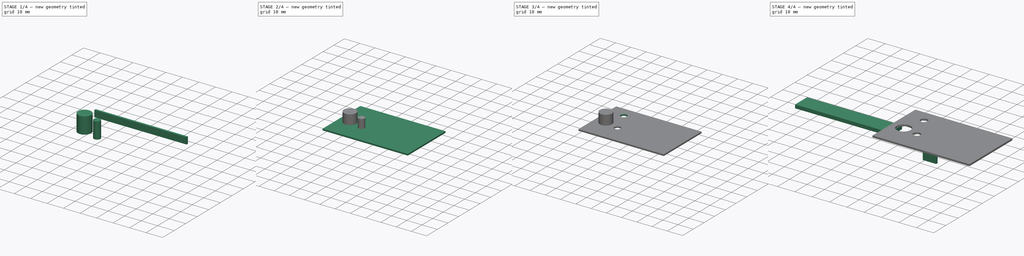
[diagram: build sequence overview — one tinted view per stage of 4, left to right]
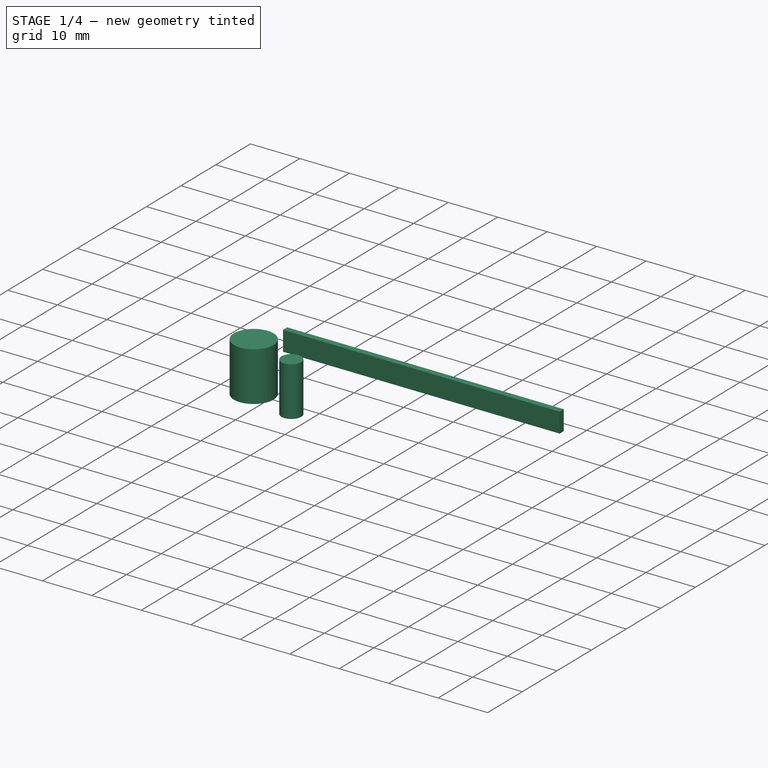
[diagram: stage 1 of 4 — iso view after this stage's code; geometry added in this stage tinted green]
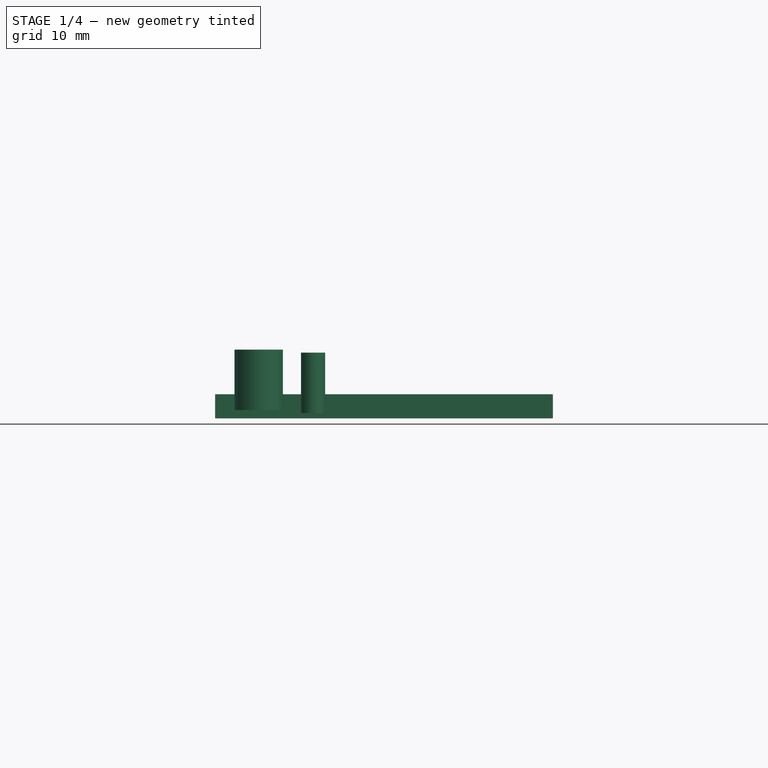
[diagram: stage 1 of 4 — front view after this stage's code; geometry added in this stage tinted green]
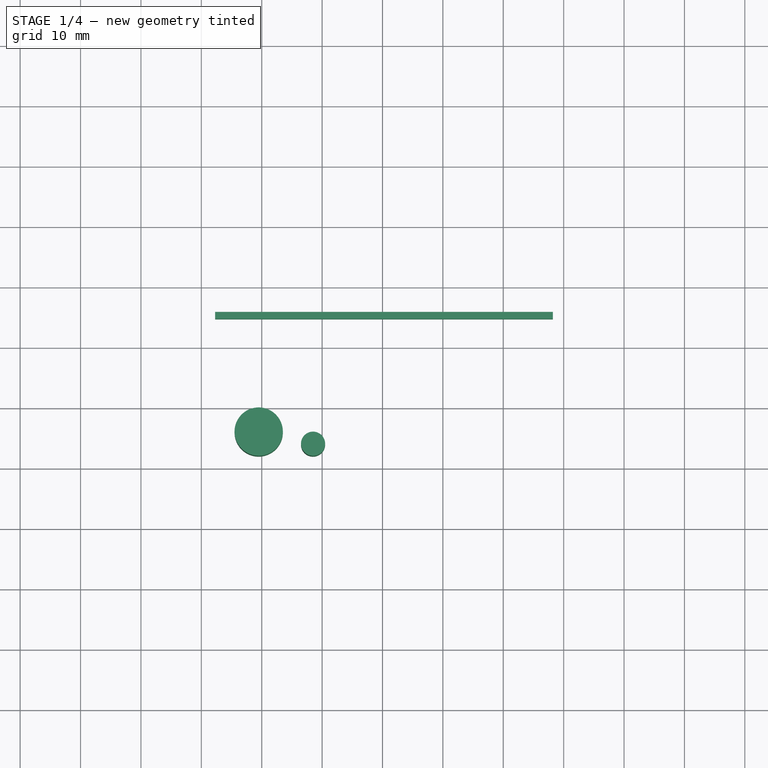
[diagram: stage 1 of 4 — top view after this stage's code; geometry added in this stage tinted green]
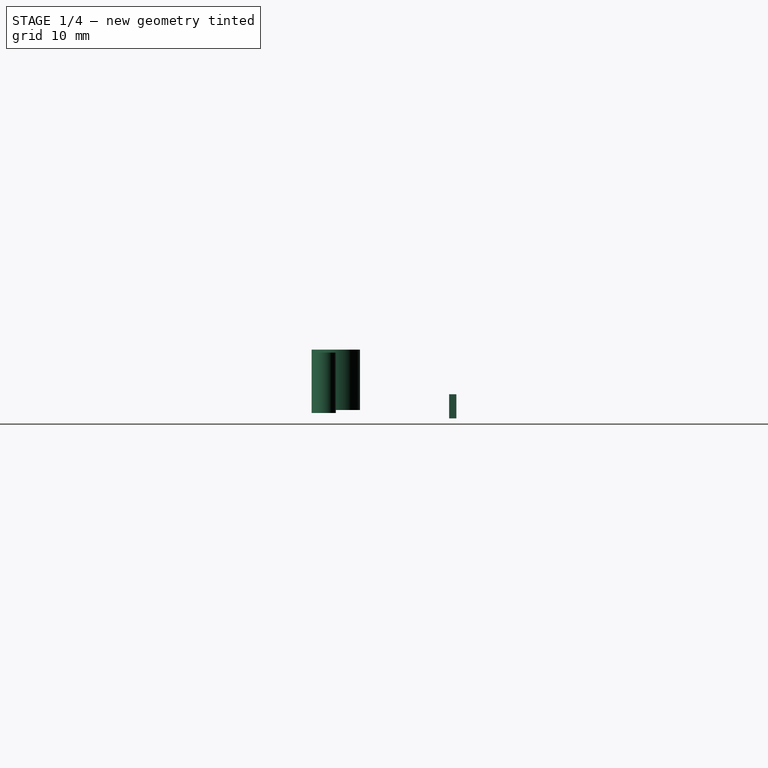
[diagram: stage 1 of 4 — right view after this stage's code; geometry added in this stage tinted green]
FCSTD DOCUMENT  (FreeCAD 0.21R33771 (Git))
Label: Arsenic-Case-Top
License: All rights reserved
LicenseURL: https://en.wikipedia.org/wiki/All_rights_reserved
objects: Part::Feature×57, Sketcher::SketchObject×7, Part::Extrusion×7, Part::Cylinder×3, Part::Cut×3, PartDesign::Body×1, Part::RuledSurface×1
note: 79 computed .brp shape members not serialized (recipe doc carries the construction recipe); baked Part::Feature solids carry a one-line shape summary decoded from their .brp

FEATURE [Part::Feature] Extrude031_cs
  shape: bbox 54.71 x 3e-07 x 2 mm, 0 faces, 0 solids (baked)
FEATURE [Part::Feature] Extrude031_cs001
  shape: bbox 54.71 x 3e-07 x 2 mm, 0 faces, 0 solids (baked)
FEATURE [Part::Feature] Extrude031_cs002
  shape: bbox 54.71 x 3e-07 x 2 mm, 0 faces, 0 solids (baked)
FEATURE [Part::RuledSurface] Ruled_Surface034
  Curve1 = -> Extrude025 [Edge9]
  Curve2 = -> Extrude025 [Edge3]
  Orientation = 0
FEATURE [Part::Feature] Wire
  shape: bbox 2e-07 x 2e-07 x 2 mm, 0 faces, 0 solids (baked)
FEATURE [Part::Feature] Wire001
  shape: bbox 13.62 x 0.0012 x 2e-07 mm, 0 faces, 0 solids (baked)
FEATURE [Part::Feature] Wire002
  shape: bbox 13.62 x 0.0012 x 2e-07 mm, 0 faces, 0 solids (baked)
FEATURE [Part::Feature] Edge
  shape: bbox 2e-07 x 1.2 x 2e-07 mm, 0 faces, 0 solids (baked)
FEATURE [Part::Feature] Edge001
  shape: bbox 2e-07 x 1.2 x 2e-07 mm, 0 faces, 0 solids (baked)
FEATURE [Part::Feature] Face016
  shape: bbox 7.7 x 2e-07 x 2.2 mm, 1 faces, 0 solids (baked)
FEATURE [Part::Feature] Wire003
  shape: bbox 3.596e-05 x 0.0012 x 2 mm, 0 faces, 0 solids (baked)
FEATURE [Part::Feature] Face017
  shape: bbox 2e-07 x 15.39 x 2.2 mm, 1 faces, 0 solids (baked)
FEATURE [Part::Feature] Edge002
  shape: bbox 13.62 x 0.0008002 x 2e-07 mm, 0 faces, 0 solids (baked)
FEATURE [Part::Feature] Face019
  shape: bbox 14.98 x 0.0008802 x 2.2 mm, 1 faces, 0 solids (baked)
FEATURE [Part::Feature] Edge003
  shape: bbox 2e-07 x 2e-07 x 2 mm, 0 faces, 0 solids (baked)
FEATURE [Part::Feature] Edge004
  shape: bbox 2e-07 x 2e-07 x 2 mm, 0 faces, 0 solids (baked)
FEATURE [Part::Feature] Edge005
  shape: bbox 13.62 x 0.0032 x 2e-07 mm, 0 faces, 0 solids (baked)
FEATURE [Part::Feature] Edge006
  shape: bbox 2e-07 x 1.198 x 2e-07 mm, 0 faces, 0 solids (baked)
FEATURE [Part::Feature] Edge007
  shape: bbox 2e-07 x 2e-07 x 2 mm, 0 faces, 0 solids (baked)
FEATURE [Part::Feature] Face021
  shape: bbox 14.98 x 0.00132 x 2.2 mm, 1 faces, 0 solids (baked)
FEATURE [Part::Feature] Face022
  shape: bbox 14.98 x 0.00352 x 2.2 mm, 1 faces, 0 solids (baked)
FEATURE [Part::Feature] Edge008
  shape: bbox 2e-07 x 1.2 x 2e-07 mm, 0 faces, 0 solids (baked)
FEATURE [Part::Feature] Edge009
  shape: bbox 2e-07 x 1.198 x 2e-07 mm, 0 faces, 0 solids (baked)
FEATURE [Part::Feature] Face023
  shape: bbox 14.98 x 1.322 x 2e-07 mm, 1 faces, 0 solids (baked)
FEATURE [Part::Feature] Edge010
  shape: bbox 1.204 x 0.0018 x 2e-07 mm, 0 faces, 0 solids (baked)
FEATURE [Part::Feature] Edge011
  shape: bbox 1.2 x 2e-07 x 2e-07 mm, 0 faces, 0 solids (baked)
FEATURE [Part::Feature] Edge012
  shape: bbox 0.003964 x 0.0014 x 2 mm, 0 faces, 0 solids (baked)
FEATURE [Part::Feature] Edge013
  shape: bbox 0.004 x 9.867 x 2e-07 mm, 0 faces, 0 solids (baked)
FEATURE [Part::Feature] Ruled_Surface024_cs
  shape: bbox 1e-05 x 9.866 x 1e-05 mm, 0 faces, 0 solids (baked)
FEATURE [Part::Feature] Ruled_Surface024_cs001
  shape: bbox 1e-05 x 9.866 x 1e-05 mm, 0 faces, 0 solids (baked)
FEATURE [Part::Feature] Edge015
  shape: bbox 1.204 x 0.0014 x 2e-07 mm, 0 faces, 0 solids (baked)
FEATURE [Part::Feature] Edge016
  shape: bbox 1.204 x 0.003 x 2e-07 mm, 0 faces, 0 solids (baked)
FEATURE [Part::Cylinder] Cylinder
  Angle = 360
  AttacherType = Attacher::AttachEngine3D
  FirstAngle = 0
  Height = 10
  Placement = pos=(-1.5,-26,2.5) rot=(0,0,1;0rad)
  Radius = 2
  SecondAngle = 0
FEATURE [Part::Cylinder] Cylinder001
  Angle = 360
  AttacherType = Attacher::AttachEngine3D
  FirstAngle = 0
  Height = 10
  Placement = pos=(-10.5,-24,3) rot=(0,0,1;0rad)
  Radius = 4
  SecondAngle = 0
FEATURE [Part::Feature] Edge017
  shape: bbox 13.62 x 0.0012 x 2e-07 mm, 0 faces, 0 solids (baked)
FEATURE [Part::Feature] Face
  shape: bbox 14.98 x 0.00132 x 2.2 mm, 1 faces, 0 solids (baked)
FEATURE [Part::Feature] Edge018
  shape: bbox 2e-07 x 1.202 x 2e-07 mm, 0 faces, 0 solids (baked)
FEATURE [Part::Feature] Face026
  shape: bbox 14.98 x 1.322 x 2e-07 mm, 1 faces, 0 solids (baked)
FEATURE [Part::Feature] Edge019
  shape: bbox 2e-07 x 1.202 x 2e-07 mm, 0 faces, 0 solids (baked)
FEATURE [Part::Feature] Face027
  shape: bbox 14.98 x 1.322 x 2e-07 mm, 1 faces, 0 solids (baked)
FEATURE [Part::Feature] Face028
  shape: bbox 14.98 x 1.322 x 2e-07 mm, 1 faces, 0 solids (baked)
FEATURE [Part::Feature] Face029
  shape: bbox 2e-07 x 1.318 x 2.2 mm, 1 faces, 0 solids (baked)
FEATURE [Part::Feature] Face030
  shape: bbox 2e-07 x 1.322 x 2.2 mm, 1 faces, 0 solids (baked)
FEATURE [Part::Feature] Face031
  shape: bbox 2e-07 x 1.32 x 2.2 mm, 1 faces, 0 solids (baked)
FEATURE [Part::Feature] Face032
  shape: bbox 7.7 x 15.39 x 2e-07 mm, 1 faces, 0 solids (baked)
FEATURE [Part::Extrusion] Extrude027
  Base = -> Sketch006
  Dir = (0,0,1)
  DirMode = 2
  FaceMakerClass = Part::FaceMakerBullseye
  LengthFwd = 4
  LengthRev = 0
  Solid = true
  Symmetric = false
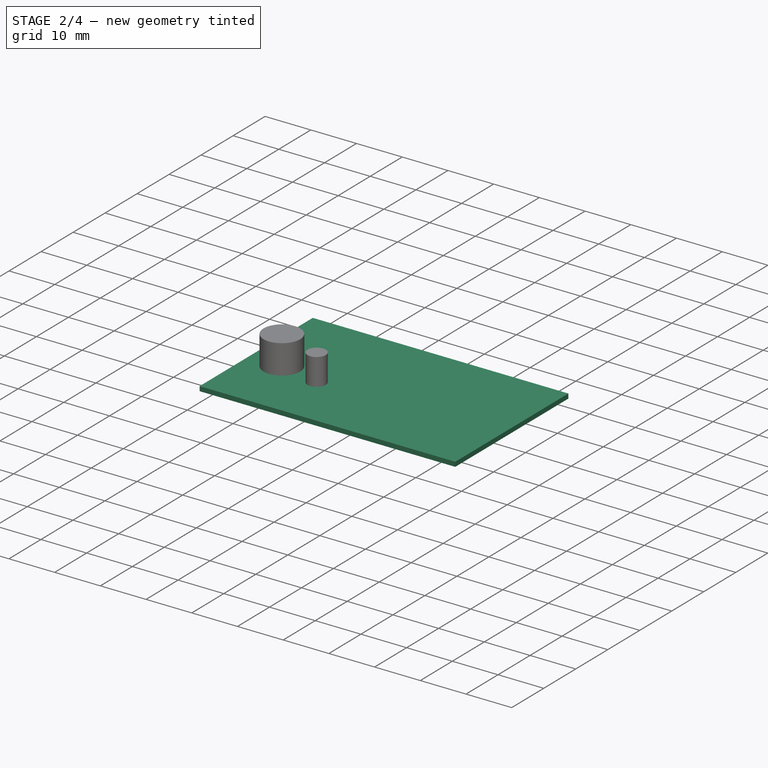
[diagram: stage 2 of 4 — iso view after this stage's code; geometry added in this stage tinted green]
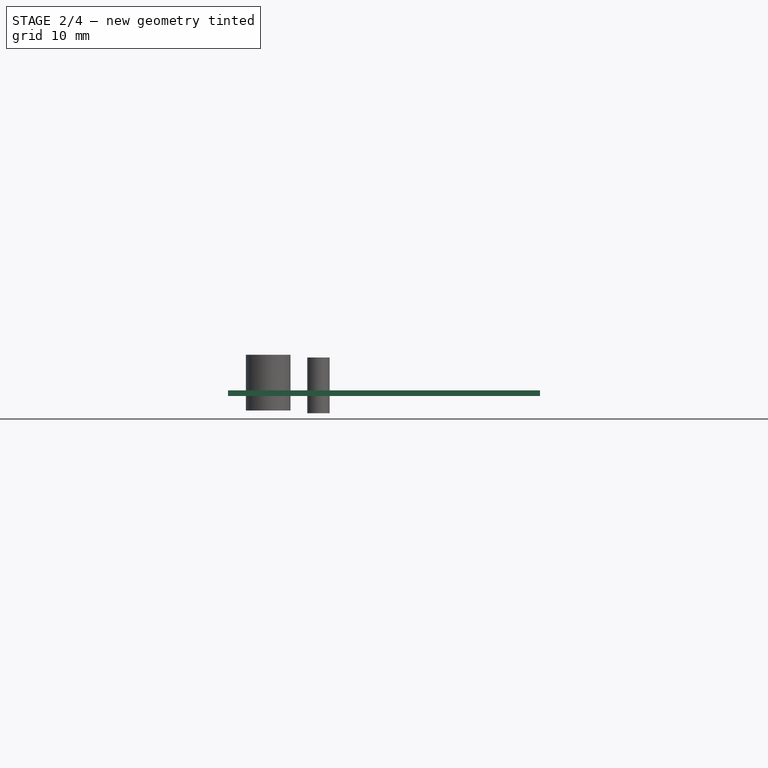
[diagram: stage 2 of 4 — front view after this stage's code; geometry added in this stage tinted green]
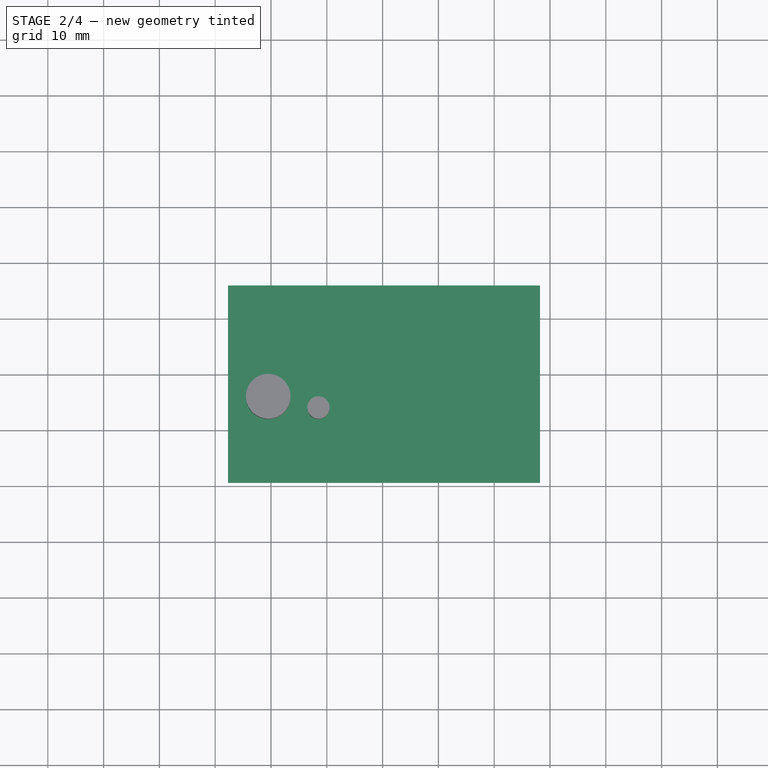
[diagram: stage 2 of 4 — top view after this stage's code; geometry added in this stage tinted green]
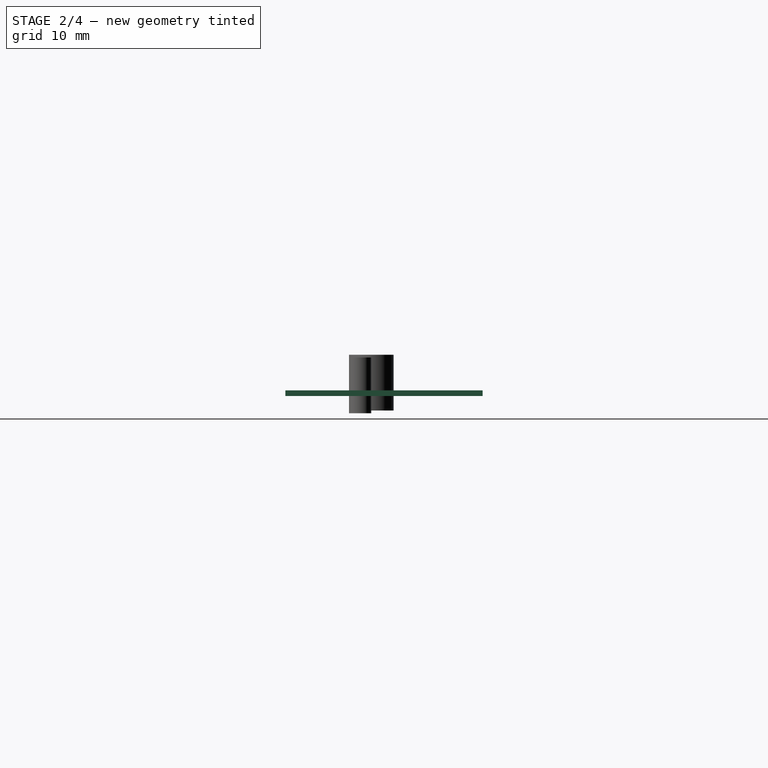
[diagram: stage 2 of 4 — right view after this stage's code; geometry added in this stage tinted green]
FEATURE [PartDesign::Body] Body
  Origin = -> Origin
FEATURE [Sketcher::SketchObject] Sketch003
  FullyConstrained = false
  MapMode = 5
  Placement = pos=(0,0,1.6) rot=(0,0,1;0rad)
  sketch-geometry (4):
    g0: LineSegment StartX=31.212 StartY=-38.199 StartZ=0 EndX=38.212 EndY=-38.199 EndZ=0
    g1: LineSegment StartX=38.212 StartY=-38.199 StartZ=0 EndX=38.212 EndY=-39.399 EndZ=0
    g2: LineSegment StartX=38.212 StartY=-39.399 StartZ=0 EndX=31.212 EndY=-39.399 EndZ=0
    g3: LineSegment StartX=31.212 StartY=-39.399 StartZ=0 EndX=31.212 EndY=-38.199 EndZ=0
  constraints (4):
    c: Coincident(g1,g0)
    c: Coincident(g2,g1)
    c: Coincident(g3,g2)
    c: Coincident(g3,g0)
FEATURE [Part::Extrusion] Extrude024
  Base = -> Sketch003
  Dir = (0,0,1)
  DirMode = 2
  FaceMakerClass = Part::FaceMakerBullseye
  LengthFwd = 4
  LengthRev = 0
  Solid = true
  Symmetric = false
FEATURE [Sketcher::SketchObject] Sketch006
  FullyConstrained = false
  MapMode = 5
  Placement = pos=(0,0,1.6) rot=(0,0,1;0rad)
  sketch-geometry (4):
    g0: LineSegment StartX=-17.714 StartY=-4.0484 StartZ=0 EndX=38.212 EndY=-4.0484 EndZ=0
    g1: LineSegment StartX=-17.714 StartY=-5.2484 StartZ=0 EndX=38.212 EndY=-5.2484 EndZ=0
    g2: LineSegment StartX=-17.714 StartY=-4.0484 StartZ=0 EndX=-17.714 EndY=-5.2484 EndZ=0
    g3: LineSegment StartX=38.212 StartY=-4.0484 StartZ=0 EndX=38.212 EndY=-5.2484 EndZ=0
  constraints (4):
    c: Coincident(g2,g0)
    c: Coincident(g2,g1)
    c: Coincident(g3,g0)
    c: Coincident(g3,g1)
FEATURE [Sketcher::SketchObject] Sketch007
  FullyConstrained = false
  MapMode = 5
  Placement = pos=(0,0,1.6) rot=(0,0,1;0rad)
  sketch-geometry (4):
    g0: LineSegment StartX=-17.714 StartY=-38.199 StartZ=0 EndX=-17.714 EndY=-39.399 EndZ=0
    g1: LineSegment StartX=5.636 StartY=-38.199 StartZ=0 EndX=5.636 EndY=-39.399 EndZ=0
    g2: LineSegment StartX=-17.714 StartY=-38.199 StartZ=0 EndX=5.636 EndY=-38.199 EndZ=0
    g3: LineSegment StartX=-17.714 StartY=-39.399 StartZ=0 EndX=5.636 EndY=-39.399 EndZ=0
  constraints (6):
    c: Vertical(g1)
    c: Coincident(g2,g0)
    c: Coincident(g2,g1)
    c: Coincident(g3,g0)
    c: Coincident(g3,g1)
    c: DistanceX(g2,g2) = 23.35
FEATURE [Part::Extrusion] Extrude028
  Base = -> Sketch007
  Dir = (0,0,1)
  DirMode = 2
  FaceMakerClass = Part::FaceMakerBullseye
  LengthFwd = 4
  LengthRev = 0
  Solid = true
  Symmetric = false
FEATURE [Sketcher::SketchObject] Sketch
  ExternalGeometry = -> [Extrude027,Extrude028,Extrude024]
  FullyConstrained = true
  MapMode = 5
  Placement = pos=(0,0,5.6) rot=(0,0,1;0rad)
  Support = -> [Extrude027]
  sketch-geometry (4):
    g0: LineSegment StartX=-17.714 StartY=-4.0484 StartZ=0 EndX=-17.714 EndY=-39.399 EndZ=0
    g1: LineSegment StartX=-17.714 StartY=-4.0484 StartZ=0 EndX=38.212 EndY=-4.0484 EndZ=0
    g2: LineSegment StartX=38.212 StartY=-4.0484 StartZ=0 EndX=38.212 EndY=-39.399 EndZ=0
    g3: LineSegment StartX=38.212 StartY=-39.399 StartZ=0 EndX=-17.714 EndY=-39.399 EndZ=0
  constraints (8):
    c: Coincident(g0,g-3)
    c: Coincident(g0,g-4)
    c: Coincident(g1,g0)
    c: Coincident(g1,g-3)
    c: Coincident(g2,g1)
    c: Coincident(g2,g-5)
    c: Coincident(g3,g2)
    c: Coincident(g3,g0)
FEATURE [Part::Extrusion] Extrude
  Base = -> Sketch
  Dir = (0,0,1)
  DirMode = 2
  FaceMakerClass = Part::FaceMakerBullseye
  LengthFwd = 1
  LengthRev = 0
  Solid = true
  Symmetric = false
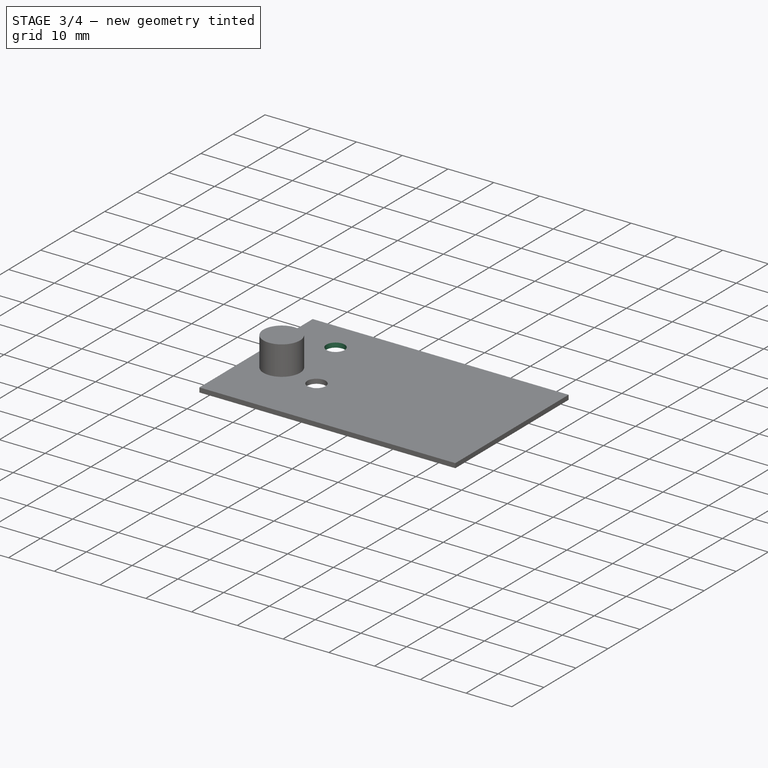
[diagram: stage 3 of 4 — iso view after this stage's code; geometry added in this stage tinted green]
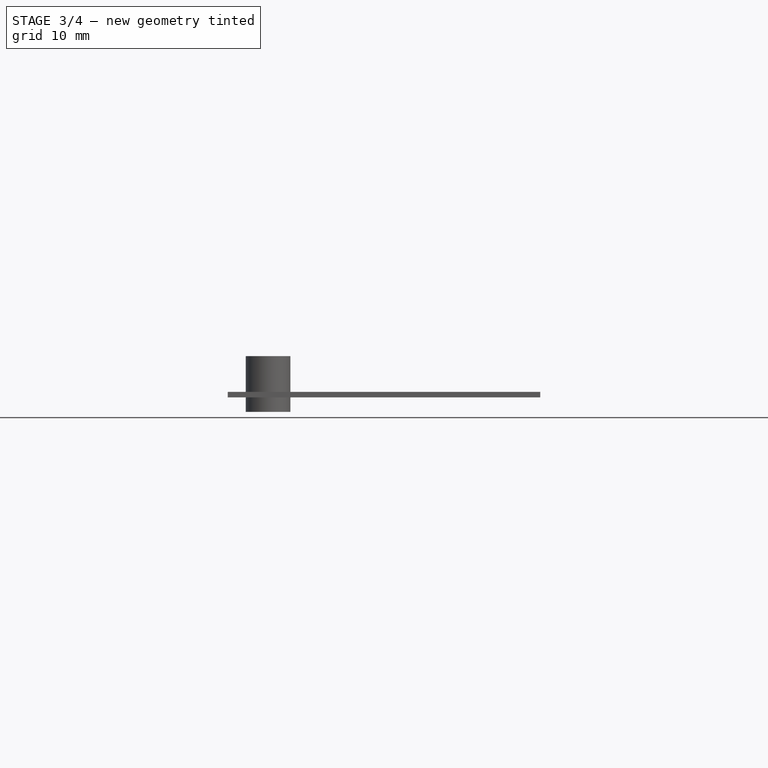
[diagram: stage 3 of 4 — front view after this stage's code; geometry added in this stage tinted green]
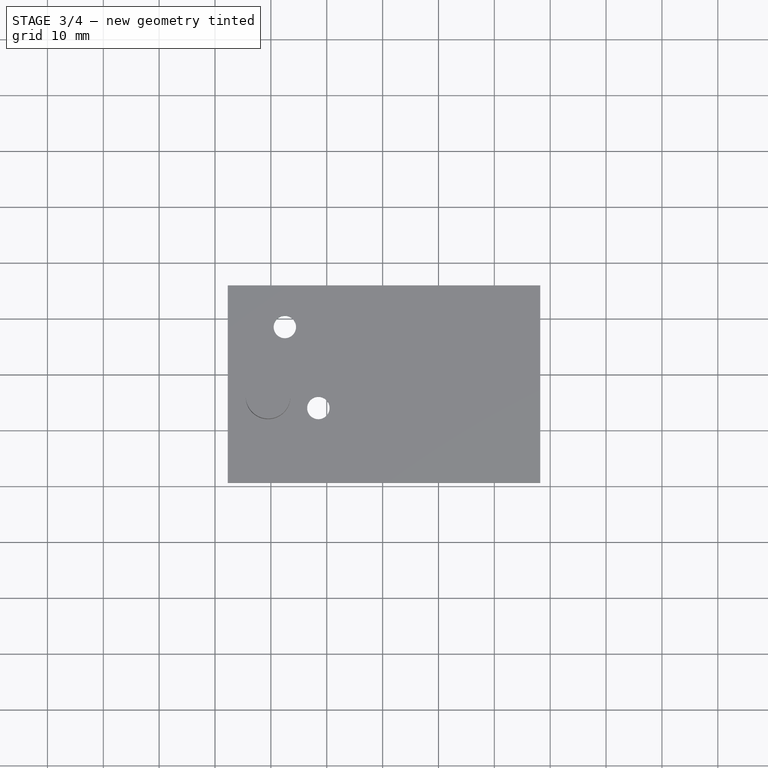
[diagram: stage 3 of 4 — top view after this stage's code; geometry added in this stage tinted green]
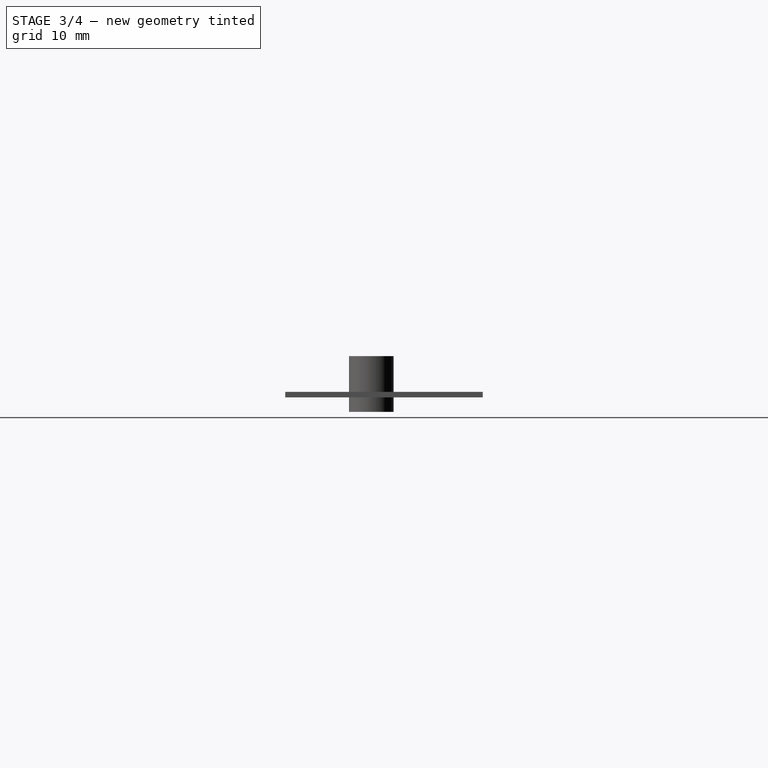
[diagram: stage 3 of 4 — right view after this stage's code; geometry added in this stage tinted green]
FEATURE [Part::Cylinder] Cylinder002
  Angle = 360
  AttacherType = Attacher::AttachEngine3D
  FirstAngle = 0
  Height = 10
  Placement = pos=(-7.5,-11.5,2.5) rot=(0,0,1;0rad)
  Radius = 2
  SecondAngle = 0
FEATURE [Part::Cut] Cut
  Base = -> Extrude
  Refine = true
  Tool = -> Cylinder
FEATURE [Part::Cut] Cut001
  Base = -> Cut
  Refine = true
  Tool = -> Cylinder002
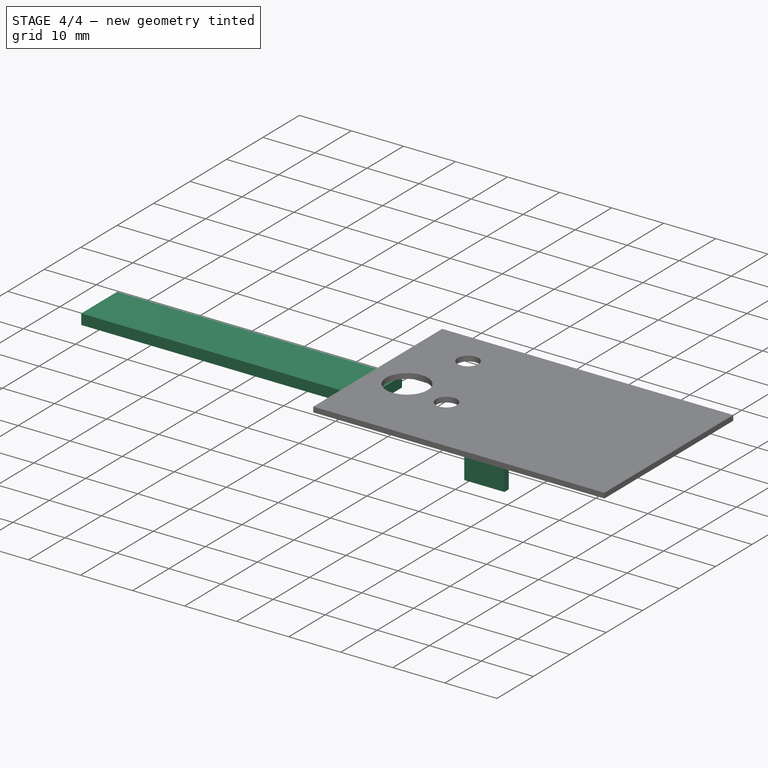
[diagram: stage 4 of 4 — iso view after this stage's code; geometry added in this stage tinted green]
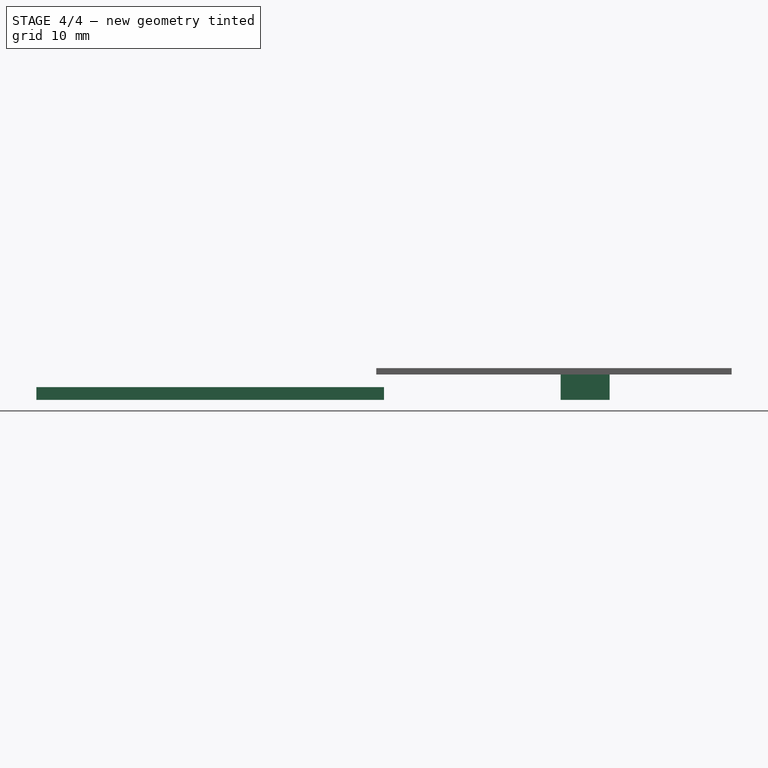
[diagram: stage 4 of 4 — front view after this stage's code; geometry added in this stage tinted green]
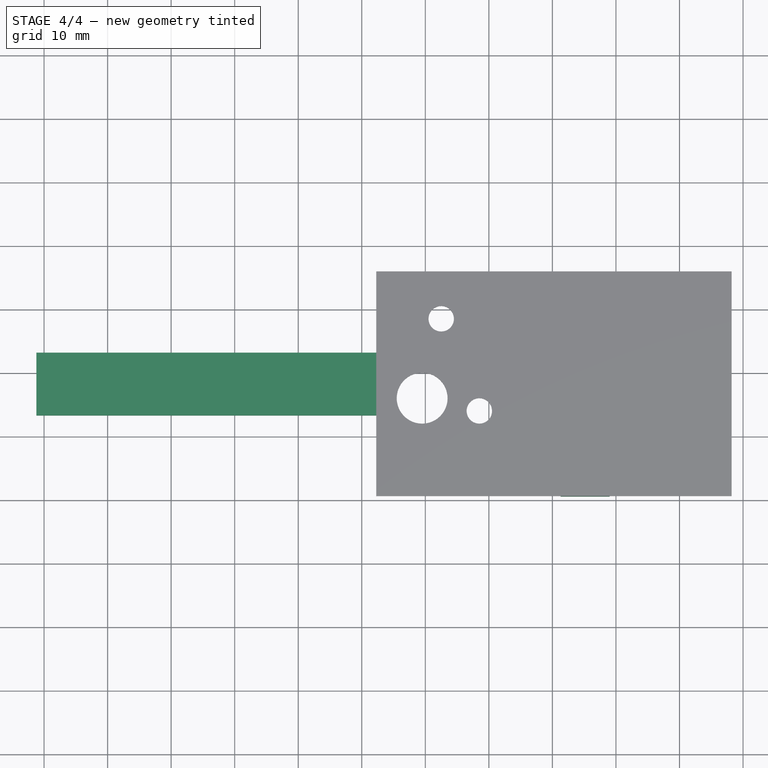
[diagram: stage 4 of 4 — top view after this stage's code; geometry added in this stage tinted green]
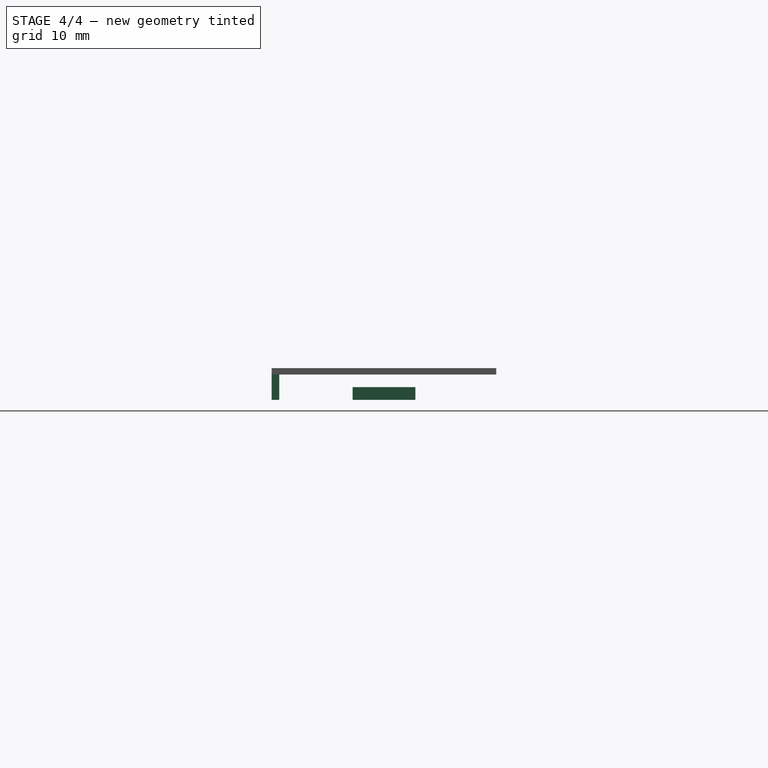
[diagram: stage 4 of 4 — right view after this stage's code; geometry added in this stage tinted green]
FEATURE [Sketcher::SketchObject] Sketch004
  FullyConstrained = false
  MapMode = 5
  Placement = pos=(0,0,1.6) rot=(0,0,1;0rad)
  sketch-geometry (4):
    g0: LineSegment StartX=28.752 StartY=-38.199 StartZ=0 EndX=28.752 EndY=-39.399 EndZ=0
    g1: LineSegment StartX=31.212 StartY=-38.199 StartZ=0 EndX=31.212 EndY=-39.399 EndZ=0
    g2: LineSegment StartX=31.212 StartY=-38.199 StartZ=0 EndX=28.752 EndY=-38.199 EndZ=0
    g3: LineSegment StartX=31.212 StartY=-39.399 StartZ=0 EndX=28.752 EndY=-39.399 EndZ=0
  constraints (9):
    c: Vertical(g0)
    c: Coincident(g2,g1)
    c: Coincident(g2,g0)
    c: Coincident(g3,g0)
    c: Horizontal(g3)
    c: Equal(g2,g3)
    c: Equal(g0,g1)
    c: Distance(g2) = 2.46
    c: Distance(g3) = 2.46
FEATURE [Part::Extrusion] Extrude025
  Base = -> Sketch004
  Dir = (0,0,-1)
  DirMode = 0
  FaceMakerClass = Part::FaceMakerBullseye
  LengthFwd = -4
  LengthRev = 0
  Solid = false
  Symmetric = false
FEATURE [Sketcher::SketchObject] Sketch005
  FullyConstrained = false
  MapMode = 5
  Placement = pos=(0,0,1.6) rot=(0,0,1;0rad)
  sketch-geometry (4):
    g0: LineSegment StartX=19.0081 StartY=-38.199 StartZ=0 EndX=19.0081 EndY=-39.399 EndZ=0
    g1: LineSegment StartX=11.2851 StartY=-38.199 StartZ=0 EndX=11.2851 EndY=-39.399 EndZ=0
    g2: LineSegment StartX=11.2851 StartY=-38.199 StartZ=0 EndX=19.0081 EndY=-38.199 EndZ=0
    g3: LineSegment StartX=11.2851 StartY=-39.399 StartZ=0 EndX=19.0081 EndY=-39.399 EndZ=0
  constraints (9):
    c: Vertical(g0)
    c: Vertical(g1)
    c: Coincident(g2,g1)
    c: Coincident(g2,g0)
    c: Horizontal(g2)
    c: Coincident(g3,g0)
    c: Horizontal(g3)
    c: Equal(g2,g3)
    c: Equal(g1,g0)
FEATURE [Part::Extrusion] Extrude026
  Base = -> Sketch005
  Dir = (0,0,1)
  DirMode = 2
  FaceMakerClass = Part::FaceMakerBullseye
  LengthFwd = 4
  LengthRev = 0
  Solid = true
  Symmetric = false
FEATURE [Sketcher::SketchObject] Sketch012
  FullyConstrained = false
  MapMode = 5
  Placement = pos=(0,0,1.6) rot=(0,0,1;0rad)
  sketch-geometry (4):
    g0: LineSegment StartX=-71.22 StartY=-16.782 StartZ=0 EndX=-71.22 EndY=-26.652 EndZ=0
    g1: LineSegment StartX=-16.51 StartY=-16.782 StartZ=0 EndX=-16.51 EndY=-26.652 EndZ=0
    g2: LineSegment StartX=-16.51 StartY=-16.782 StartZ=0 EndX=-71.22 EndY=-16.782 EndZ=0
    g3: LineSegment StartX=-16.51 StartY=-26.652 StartZ=0 EndX=-71.22 EndY=-26.652 EndZ=0
  constraints (11):
    c: Vertical(g0)
    c: Coincident(g2,g1)
    c: Coincident(g2,g0)
    c: Coincident(g3,g1)
    c: Coincident(g3,g0)
    c: Equal(g2,g3)
    c: DistanceX(g2,g2) = 54.71
    c: DistanceX(g3,g3) = 54.71
    c: DistanceY(g0,g0) = 9.87
    c: DistanceY(g1,g1) = 9.87
    c: Angle(g2,g1) = 1.5708
FEATURE [Part::Extrusion] Extrude031
  Base = -> Sketch012
  Dir = (0,0,1)
  DirMode = 2
  FaceMakerClass = Part::FaceMakerBullseye
  LengthFwd = 2
  LengthRev = 0
  Solid = true
  Symmetric = false
FEATURE [Part::Cut] Cut002
  Base = -> Cut001
  Refine = true
  Tool = -> Cylinder001
FEATURE [Part::Feature] Edge020
  shape: bbox 2e-07 x 2e-07 x 2 mm, 0 faces, 0 solids (baked)
FEATURE [Part::Feature] Edge021
  shape: bbox 2e-07 x 2e-07 x 2 mm, 0 faces, 0 solids (baked)
FEATURE [Part::Feature] Edge022
  shape: bbox 2e-07 x 9.866 x 2e-07 mm, 0 faces, 0 solids (baked)
FEATURE [Part::Feature] Edge023
  shape: bbox 2e-07 x 9.87 x 2e-07 mm, 0 faces, 0 solids (baked)
FEATURE [Part::Feature] Face033
  shape: bbox 0.004621 x 10.86 x 2.2 mm, 1 faces, 0 solids (baked)
FEATURE [Part::Feature] Face034
  shape: bbox 1.325 x 10.86 x 2e-07 mm, 1 faces, 0 solids (baked)
FEATURE [Part::Feature] Face035
  shape: bbox 1.324 x 0.003366 x 2.2 mm, 1 faces, 0 solids (baked)
FEATURE [Part::Feature] Face036
  shape: bbox 1.328 x 0.001619 x 2.204 mm, 1 faces, 0 solids (baked)
FEATURE [Part::Feature] Face037
  shape: bbox 2e-07 x 10.85 x 2.2 mm, 1 faces, 0 solids (baked)
FEATURE [Part::Feature] Face038
  shape: bbox 1.327 x 10.85 x 2e-07 mm, 1 faces, 0 solids (baked)
FEATURE [Part::Feature] Edge024
  shape: bbox 2e-07 x 13.99 x 2e-07 mm, 0 faces, 0 solids (baked)
FEATURE [Part::Feature] Face039
  shape: bbox 2e-07 x 15.39 x 2.2 mm, 1 faces, 0 solids (baked)
FEATURE [Part::Feature] Face040
  shape: bbox 7.7 x 15.39 x 2e-07 mm, 1 faces, 0 solids (baked)
FEATURE [Part::Feature] Face041
  shape: bbox 2e-07 x 1.32 x 2.2 mm, 1 faces, 0 solids (baked)
FEATURE [Part::Feature] Face042
  shape: bbox 7.7 x 2e-07 x 2.2 mm, 1 faces, 0 solids (baked)
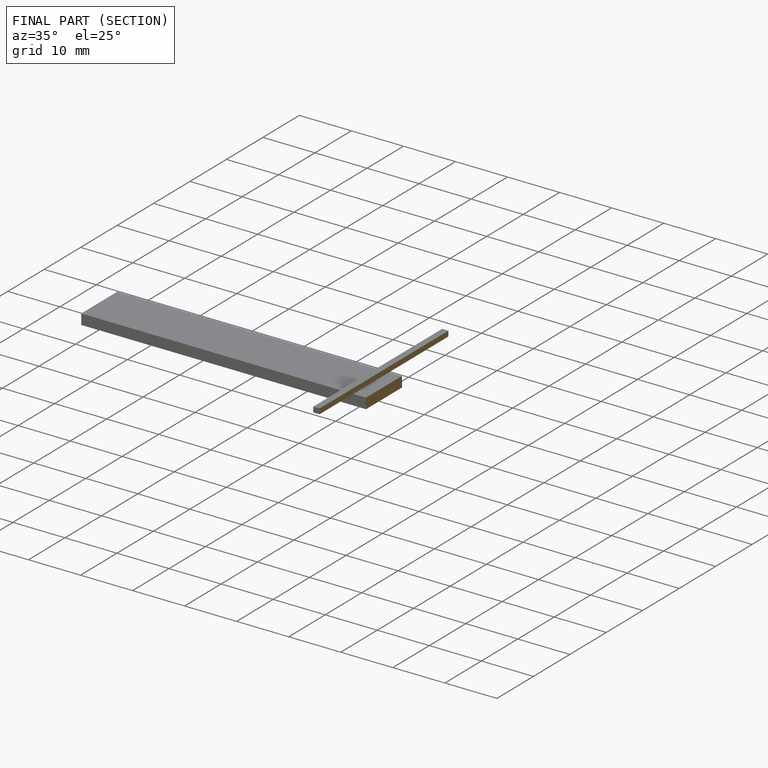
[diagram: finished part — half-section view (interior)]
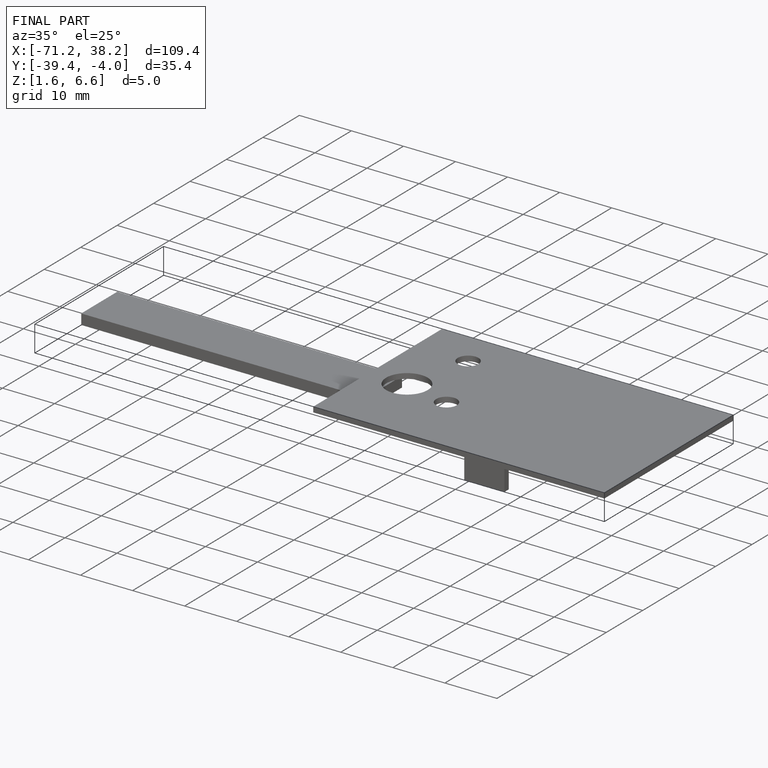
[diagram: finished part — iso view with bounding-box wireframe]
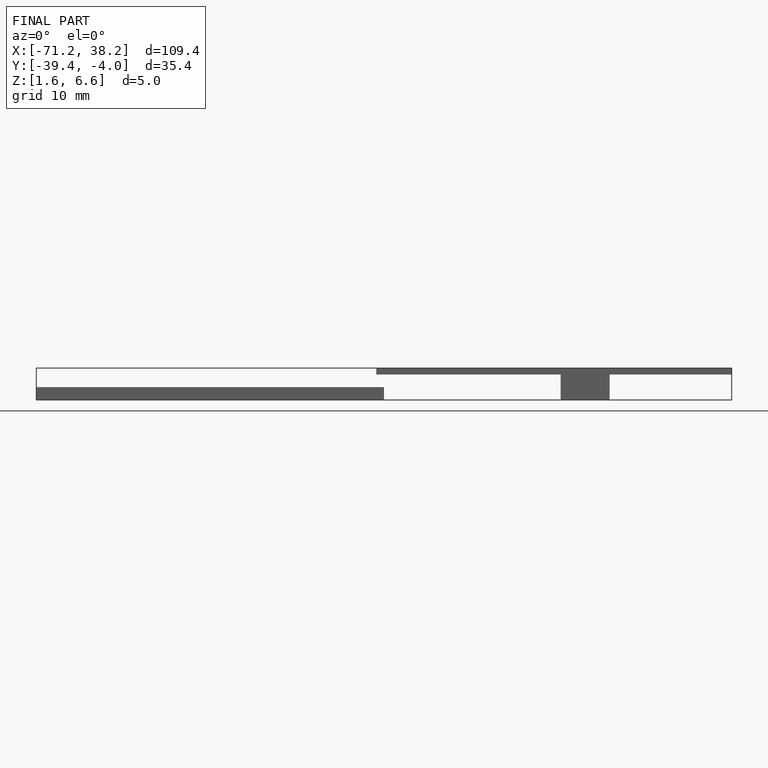
[diagram: finished part — front view with bounding-box wireframe]
